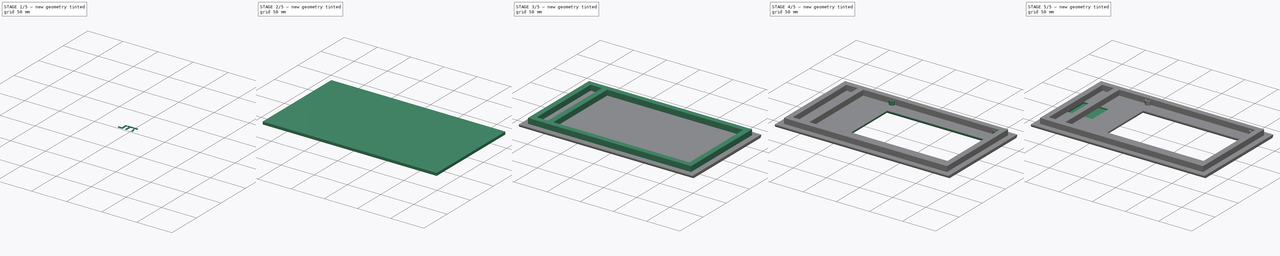
[diagram: build sequence overview — one tinted view per stage of 5, left to right]
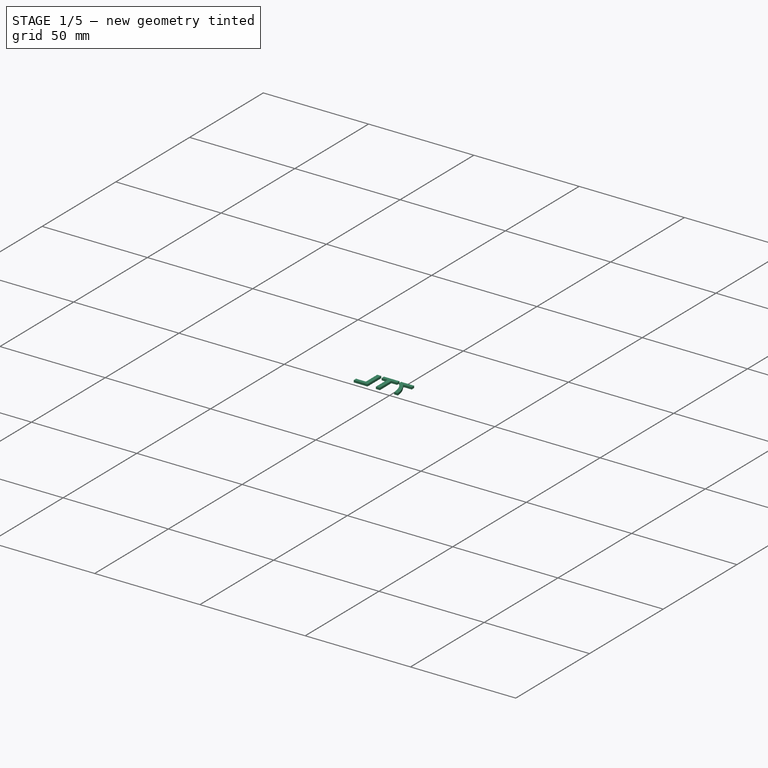
[diagram: stage 1 of 5 — iso view after this stage's code; geometry added in this stage tinted green]
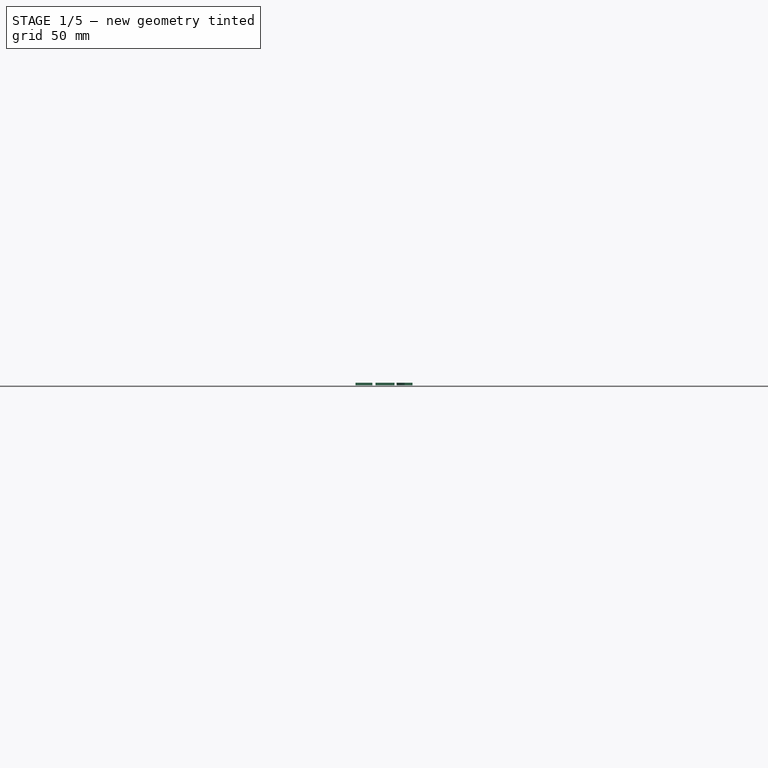
[diagram: stage 1 of 5 — front view after this stage's code; geometry added in this stage tinted green]
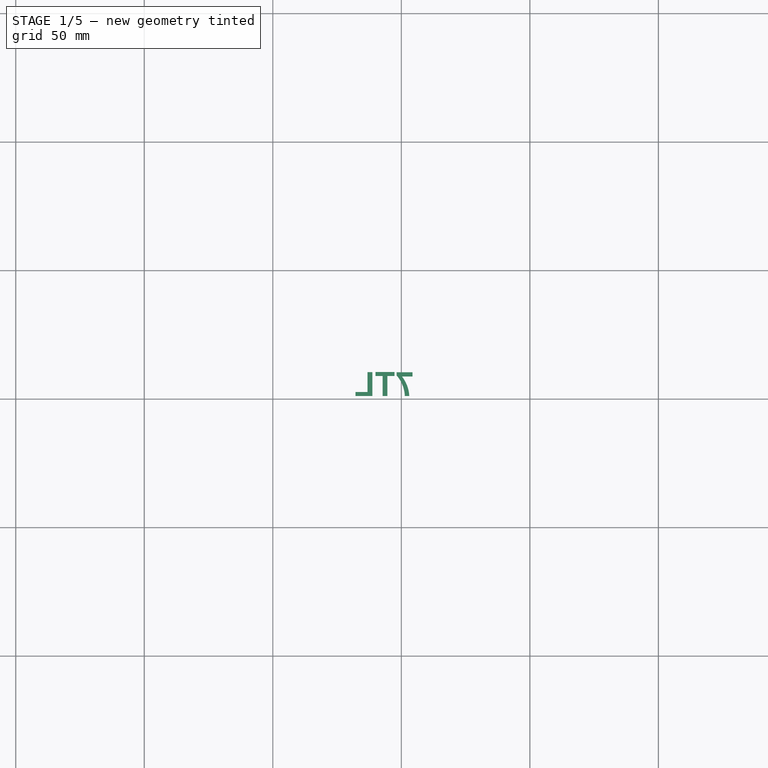
[diagram: stage 1 of 5 — top view after this stage's code; geometry added in this stage tinted green]
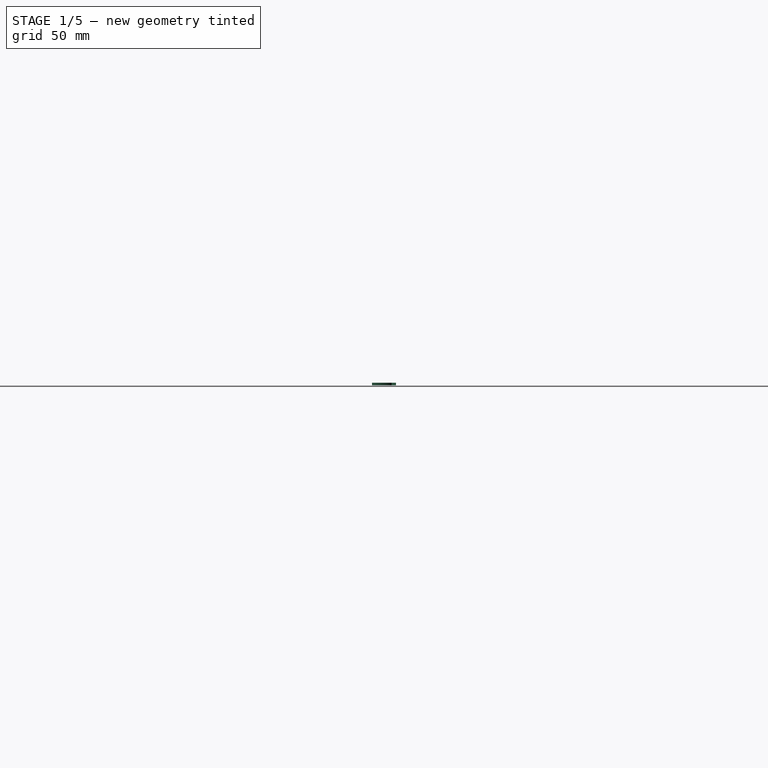
[diagram: stage 1 of 5 — right view after this stage's code; geometry added in this stage tinted green]
FCSTD DOCUMENT  (FreeCAD 0.21R33771 (Git))
Label: sBitX_Case
License: All rights reserved
LicenseURL: http://en.wikipedia.org/wiki/All_rights_reserved
objects: Sketcher::SketchObject×8, PartDesign::Pad×8, PartDesign::Pocket×6, Part::Part2DObjectPython×6, PartDesign::Body×6, App::Part×6, Spreadsheet::Sheet×1, PartDesign::Fillet×1, PartDesign::Chamfer×1
note: 52 computed .brp shape members not serialized (recipe doc carries the construction recipe); baked Part::Feature solids carry a one-line shape summary decoded from their .brp

FEATURE [PartDesign::Body] Body002  label="EBody"
  Group = -> [ShapeString006,Pad004]
  Origin = -> Origin008
  Tip = -> Pad004
FEATURE [App::Part] Part005  label="EPart"
  Group = -> [Body002]
  Origin = -> Origin007
FEATURE [Part::Part2DObjectPython] ShapeString007  label="7Fill"  # Draft 2D object (typed FeaturePython)
  FontFile = <path>
  MakeFace = true
  Placement = pos=(54.87,51.22,0) rot=(0,1,0;3.14159rad)
  Size = 10
  String = 7
  Tracking = 0
FEATURE [PartDesign::Pad] Pad005
  Direction = (0,0,-1)
  Length = 1
  Length2 = 10
  Placement = pos=(54.87,51.22,0) rot=(0,1,0;3.14159rad)
  Profile = -> ShapeString007
  ReferenceAxis = -> ShapeString007 [N_Axis]
  Reversed = true
  Type = 0
FEATURE [PartDesign::Body] Body003  label="7Body"
  Group = -> [ShapeString007,Pad005]
  Origin = -> Origin010
  Tip = -> Pad005
FEATURE [App::Part] Part006  label="7Part"
  Group = -> [Body003]
  Origin = -> Origin009
FEATURE [Part::Part2DObjectPython] ShapeString008  label="TFill"  # Draft 2D object (typed FeaturePython)
  FontFile = <path>
  MakeFace = true
  Placement = pos=(47.62,51.22,0) rot=(0,1,0;3.14159rad)
  Size = 10
  String = T
  Tracking = 0
FEATURE [PartDesign::Pad] Pad006
  Direction = (0,0,-1)
  Length = 1
  Length2 = 10
  Placement = pos=(47.62,51.22,0) rot=(0,1,0;3.14159rad)
  Profile = -> ShapeString008
  ReferenceAxis = -> ShapeString008 [N_Axis]
  Reversed = true
  Type = 0
FEATURE [PartDesign::Body] Body004  label="TBody"
  Group = -> [ShapeString008,Pad006]
  Origin = -> Origin012
  Tip = -> Pad006
FEATURE [App::Part] Part007  label="TPart"
  Group = -> [Body004]
  Origin = -> Origin011
FEATURE [Part::Part2DObjectPython] ShapeString009  label="LFill"  # Draft 2D object (typed FeaturePython)
  FontFile = <path>
  MakeFace = true
  Placement = pos=(39.72,51.22,0) rot=(0,1,0;3.14159rad)
  Size = 10
  String = L
  Tracking = 0
FEATURE [PartDesign::Pad] Pad007
  Direction = (0,0,-1)
  Length = 1
  Length2 = 10
  Placement = pos=(39.72,51.22,0) rot=(0,1,0;3.14159rad)
  Profile = -> ShapeString009
  ReferenceAxis = -> ShapeString009 [N_Axis]
  Reversed = true
  Type = 0
FEATURE [PartDesign::Body] Body005  label="LBody"
  Group = -> [ShapeString009,Pad007]
  Origin = -> Origin014
  Tip = -> Pad007
FEATURE [App::Part] Part008  label="LPart"
  Group = -> [Body005]
  Origin = -> Origin013
note: 6 file-system paths scrubbed to <path> (originals preserved in the JSON sidecar)
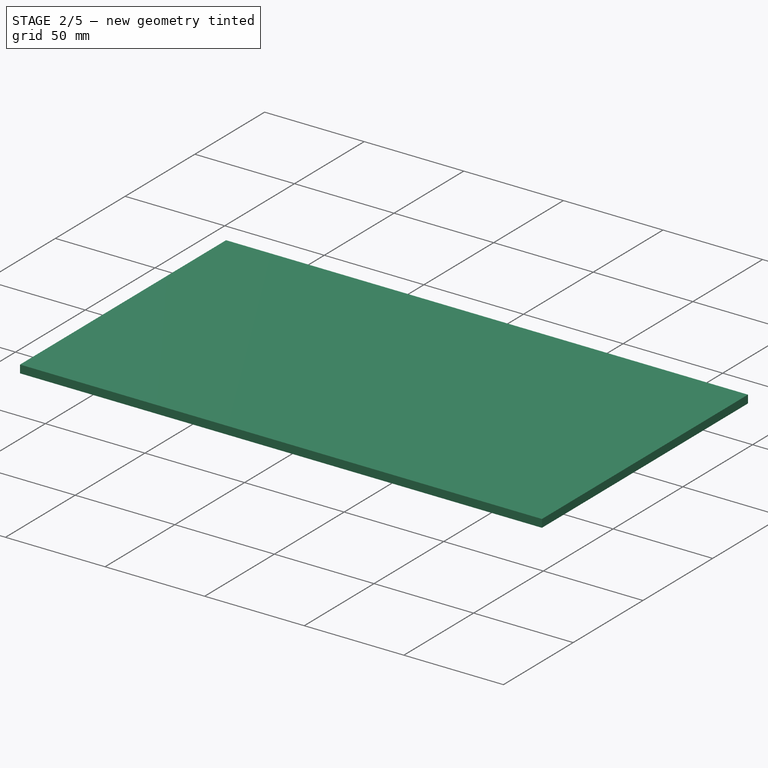
[diagram: stage 2 of 5 — iso view after this stage's code; geometry added in this stage tinted green]
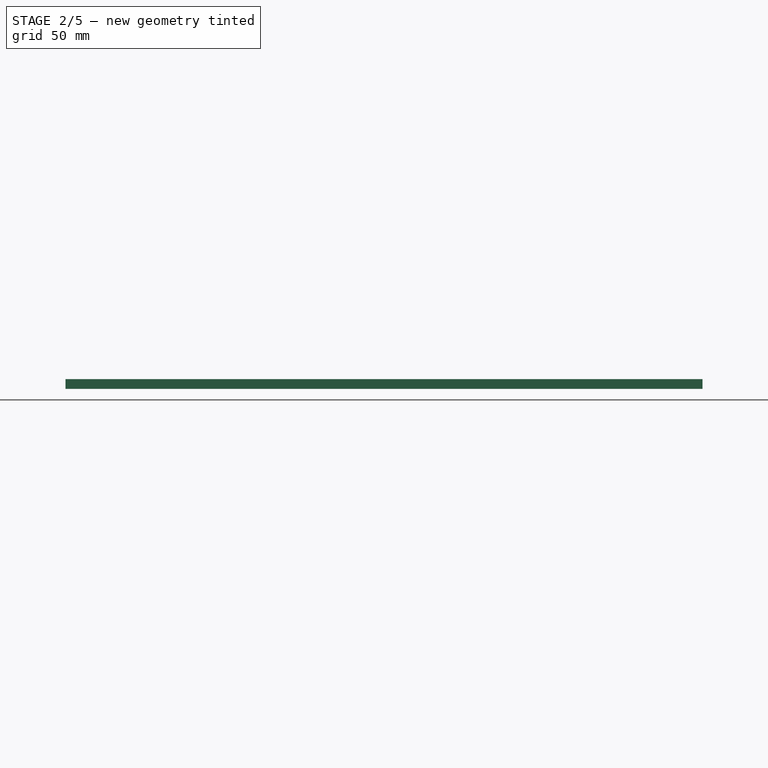
[diagram: stage 2 of 5 — front view after this stage's code; geometry added in this stage tinted green]
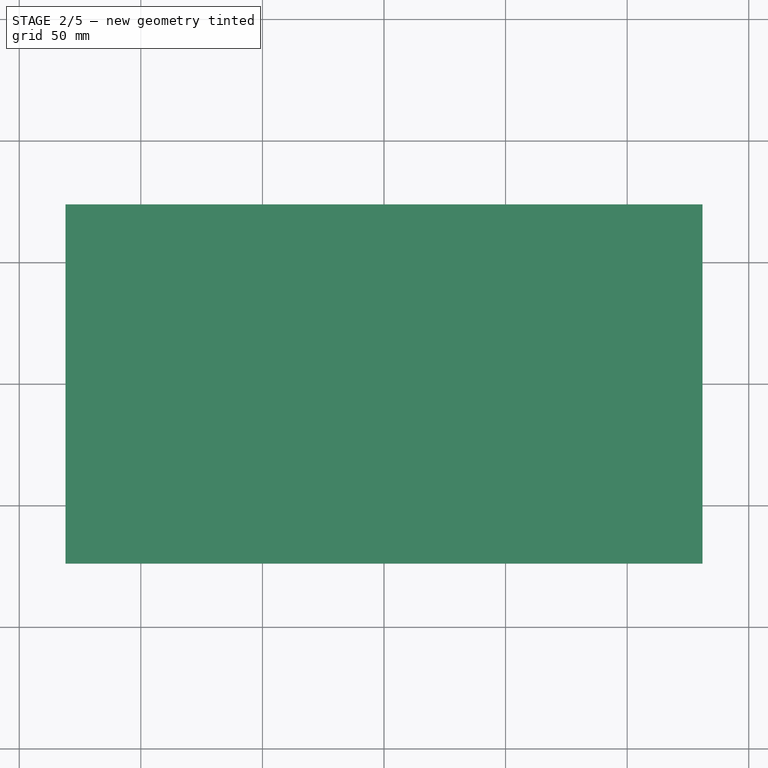
[diagram: stage 2 of 5 — top view after this stage's code; geometry added in this stage tinted green]
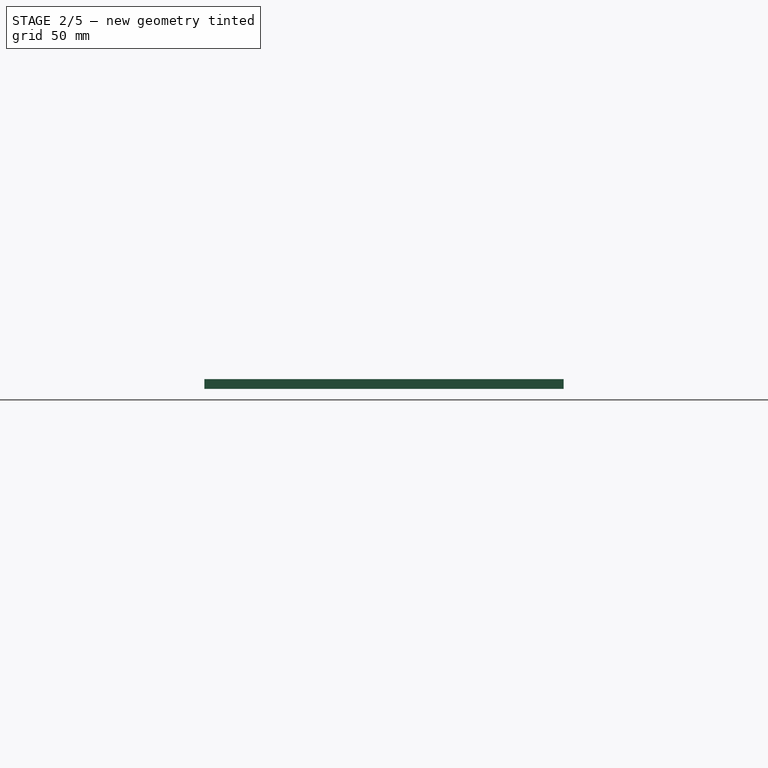
[diagram: stage 2 of 5 — right view after this stage's code; geometry added in this stage tinted green]
FEATURE [Spreadsheet::Sheet] Spreadsheet  label="p"
  cells = A1='disp_width; B1(disp_width)=165; C1=165; A2='disp_length; B2(disp_length)=125; A3='disp_height; B3(disp_height)=6; A5='disp_hole_width; B5(disp_hole_width)=156.9; A6='disp_hole_center_height; B6(disp_hole_center_height)=114.96; A7='disp_hole_radius; B7(disp_hole_radius)=1.6; A9='disp_pcb_thickness; B9(disp_pcb_thickness)=1.6; A10='disp_thickest; B10(disp_thickest)=15; A12='disp_screen_width; B12(disp_screen_width)=145; A13='disp_screen_length; B13(disp_screen_length)=77.5; A15='lid_width; B15(lid_width)=254; C15='+ lid_wall_thickness * 2; A16='lid_length; B16(lid_length)=139.7; C16='+ lid_wall_thickness * 2; A17='lid_hole_diameter; B17(lid_hole_diameter)=5.5; C17='M4/H8; A18='lid_wall_thickness; B18(lid_wall_thickness)=4; A19='lid_support_thickness; B19(lid_support_thickness)=8; A21='encoder_board_width; B21(encoder_board_width)=26; A22='encoder_board_length; B22(encoder_board_length)=106.5; A23='encoder_board_bottom_encoder_y; B23(encoder_board_bottom_encoder_y)=13; A24='encoder_board_top_encoder_y; B24(encoder_board_top_encoder_y)=88.5; A25='encoder_hole_diameter; B25(encoder_hole_diameter)=8; A26='encoder_board_connector_length; B26(encoder_board_connector_length)=21; A27='encoder_board_connector_bottom_edge_y; B27(encoder_board_connector_bottom_edge_y)=38; A28='encoder_board_connector_thickness; B28(encoder_board_connector_thickness)=11.1; A29='encoder_thread_start; B29(encoder_thread_start)=7; A30='encoder_nut_hole_diameter; B30(encoder_nut_hole_diameter)=13.5; A32='lid_wall_clearance; B32(lid_wall_clearance)=0.2; A33='disp_width_clearance; B33(disp_width_clearance)=40; A35='disp_lug_hole_diameter; B35(disp_lug_hole_diameter)=4.5; A36='disp_lug_diameter; B36(disp_lug_diameter)=8; A38='encoder_stem_distance; B38(encoder_stem_distance)=76
FEATURE [Sketcher::SketchObject] Sketch  label="LidBodySketch"
  FullyConstrained = true
  MapMode = 5
  Support = -> [XY_Plane001]
  expr: Constraints[8] = <<p>>.lid_width + <<p>>.lid_wall_thickness * 2
  expr: Constraints[9] = <<p>>.lid_length + <<p>>.lid_wall_thickness * 2
  sketch-geometry (4):
    g0: LineSegment StartX=-131 StartY=73.85 StartZ=0 EndX=131 EndY=73.85 EndZ=0
    g1: LineSegment StartX=131 StartY=73.85 StartZ=0 EndX=131 EndY=-73.85 EndZ=0
    g2: LineSegment StartX=131 StartY=-73.85 StartZ=0 EndX=-131 EndY=-73.85 EndZ=0
    g3: LineSegment StartX=-131 StartY=-73.85 StartZ=0 EndX=-131 EndY=73.85 EndZ=0
  constraints (11):
    c: Coincident(g0,g1)
    c: Coincident(g1,g2)
    c: Coincident(g2,g3)
    c: Coincident(g3,g0)
    c: Horizontal(g0)
    c: Horizontal(g2)
    c: Vertical(g1)
    c: Vertical(g3)
    c: DistanceX(g0,g0) = 262
    c: DistanceY(g1,g1) = 147.7
    c: Symmetric(g0,g2,g-1)
FEATURE [PartDesign::Pad] Pad  label="LidBodyPad"
  Direction = (0,0,1)
  Length = 4
  Length2 = 10
  Profile = -> Sketch
  ReferenceAxis = -> Sketch [N_Axis]
  Type = 0
  expr: Length = <<p>>.lid_wall_thickness
FEATURE [PartDesign::Body] Body  label="LidBody"
  Group = -> [Sketch,Pad,Fillet,Sketch001,Pad001,Sketch002,Pocket,Sketch003,Pocket001,Sketch004,Pocket002,Chamfer,Sketch005,Pad002,Sketch006,Pocket003,Sketch007,Pocket004,ShapeString,Pocket005]
  Origin = -> Origin001
  Tip = -> Pocket005
FEATURE [App::Part] Part  label="Lid"
  Group = -> [Body]
  Origin = -> Origin
FEATURE [Part::Part2DObjectPython] ShapeString002  label="KFill"  # Draft 2D object (typed FeaturePython)
  FontFile = <path>
  MakeFace = true
  Placement = pos=(64.31,51.22,0) rot=(0,1,0;3.14159rad)
  Size = 10
  String = K
  Tracking = 0
FEATURE [PartDesign::Pad] Pad003
  Direction = (0,0,-1)
  Length = 1
  Length2 = 10
  Placement = pos=(64.31,51.22,0) rot=(0,1,0;3.14159rad)
  Profile = -> ShapeString002
  ReferenceAxis = -> ShapeString002 [N_Axis]
  Reversed = true
  Type = 0
FEATURE [PartDesign::Body] Body001  label="KBody"
  Group = -> [ShapeString002,Pad003]
  Origin = -> Origin003
  Tip = -> Pad003
FEATURE [App::Part] Part001  label="KPart"
  Group = -> [Body001]
  Origin = -> Origin002
FEATURE [Part::Part2DObjectPython] ShapeString006  label="EFill"  # Draft 2D object (typed FeaturePython)
  FontFile = <path>
  MakeFace = true
  Placement = pos=(31.74,51.22,0) rot=(0,1,0;3.14159rad)
  Size = 10
  String = E
  Tracking = 0
FEATURE [PartDesign::Pad] Pad004
  Direction = (0,0,-1)
  Length = 1
  Length2 = 10
  Placement = pos=(31.74,51.22,0) rot=(0,1,0;3.14159rad)
  Profile = -> ShapeString006
  ReferenceAxis = -> ShapeString006 [N_Axis]
  Reversed = true
  Type = 0
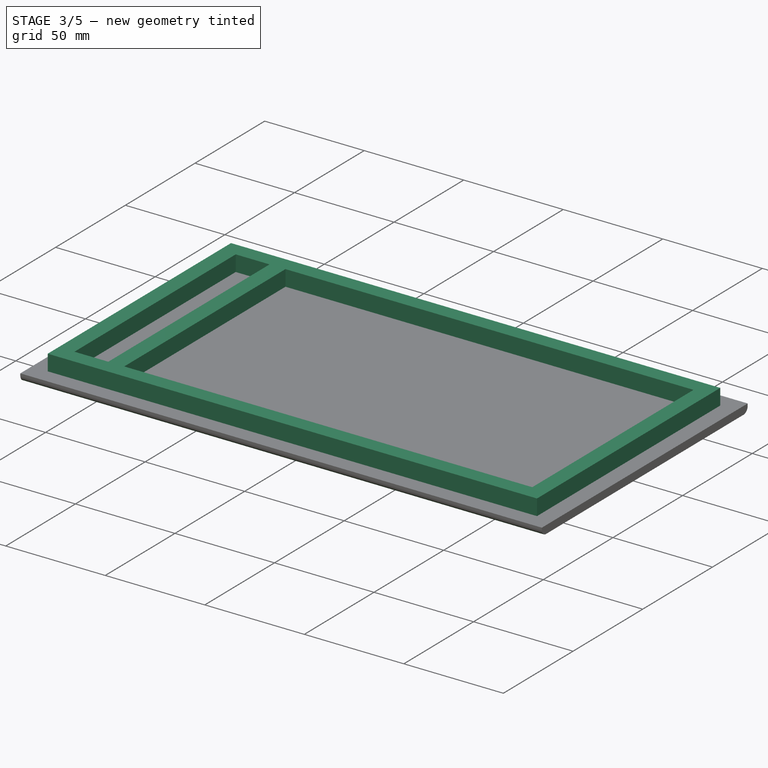
[diagram: stage 3 of 5 — iso view after this stage's code; geometry added in this stage tinted green]
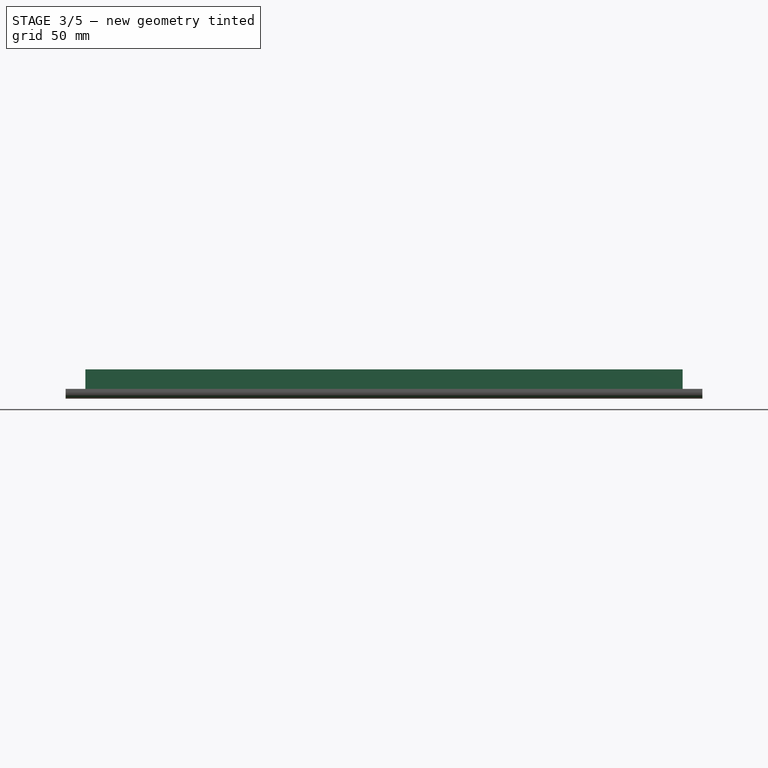
[diagram: stage 3 of 5 — front view after this stage's code; geometry added in this stage tinted green]
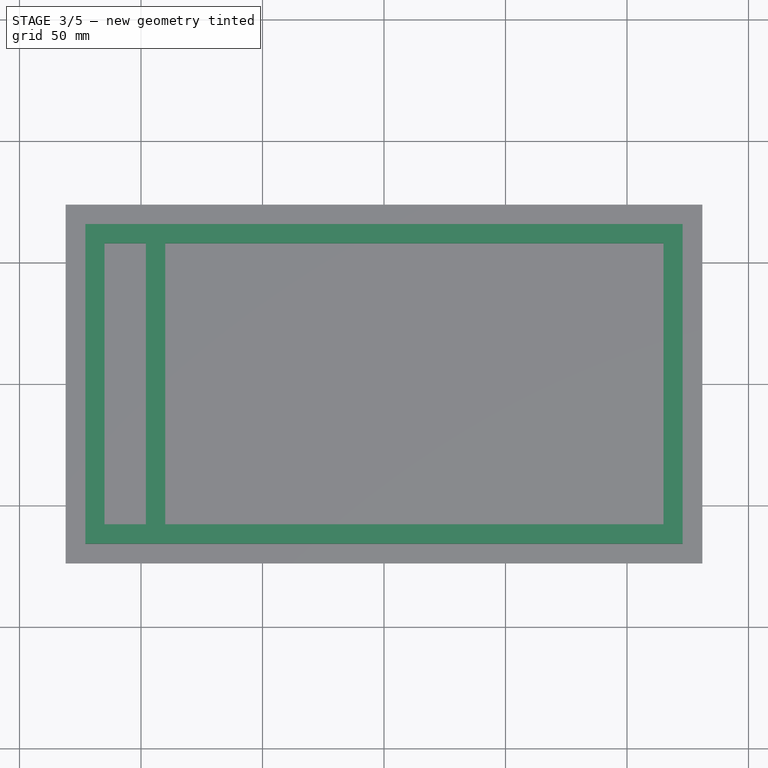
[diagram: stage 3 of 5 — top view after this stage's code; geometry added in this stage tinted green]
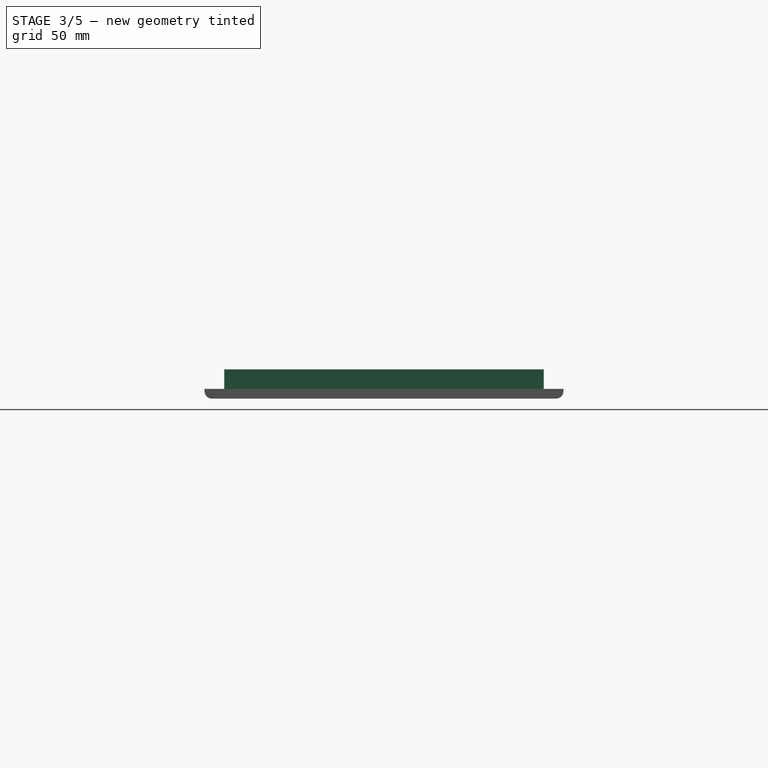
[diagram: stage 3 of 5 — right view after this stage's code; geometry added in this stage tinted green]
FEATURE [PartDesign::Fillet] Fillet  label="LidBodyFillet"
  Base = -> Pad [Edge3,Edge9]
  BaseFeature = -> Pad
  Radius = 3
  SupportTransform = false
  UseAllEdges = false
FEATURE [Sketcher::SketchObject] Sketch001  label="LidInnerPad"
  FullyConstrained = true
  MapMode = 5
  Placement = pos=(0,0,4) rot=(0,0,1;0rad)
  Support = -> [Fillet]
  expr: Constraints[8] = <<p>>.lid_width - <<p>>.lid_wall_thickness * 2 - <<p>>.lid_wall_clearance
  expr: Constraints[9] = <<p>>.lid_length - <<p>>.lid_wall_thickness * 2 - <<p>>.lid_wall_clearance
  sketch-geometry (4):
    g0: LineSegment StartX=-122.9 StartY=65.75 StartZ=0 EndX=122.9 EndY=65.75 EndZ=0
    g1: LineSegment StartX=122.9 StartY=65.75 StartZ=0 EndX=122.9 EndY=-65.75 EndZ=0
    g2: LineSegment StartX=122.9 StartY=-65.75 StartZ=0 EndX=-122.9 EndY=-65.75 EndZ=0
    g3: LineSegment StartX=-122.9 StartY=-65.75 StartZ=0 EndX=-122.9 EndY=65.75 EndZ=0
  constraints (11):
    c: Coincident(g0,g1)
    c: Coincident(g1,g2)
    c: Coincident(g2,g3)
    c: Coincident(g3,g0)
    c: Horizontal(g0)
    c: Horizontal(g2)
    c: Vertical(g1)
    c: Vertical(g3)
    c: DistanceX(g0,g0) = 245.8
    c: DistanceY(g3,g3) = 131.5
    c: Symmetric(g0,g2,g-1)
FEATURE [PartDesign::Pad] Pad001  label="LidInnerPad001"
  BaseFeature = -> Fillet
  Direction = (0,0,1)
  Length = 8
  Length2 = 10
  Profile = -> Sketch001
  ReferenceAxis = -> Sketch001 [N_Axis]
  Type = 0
  expr: Length = <<p>>.lid_support_thickness
FEATURE [Sketcher::SketchObject] Sketch002  label="DispPocketSketch"
  FullyConstrained = true
  MapMode = 5
  Placement = pos=(0,0,12) rot=(0,0,1;0rad)
  Support = -> [Pad001]
  expr: Constraints[10] = <<p>>.disp_width + <<p>>.disp_width_clearance
  expr: Constraints[11] = <<p>>.lid_width / 2 - <<p>>.lid_wall_thickness - <<p>>.lid_support_thickness
  expr: Constraints[8] = <<p>>.lid_length - <<p>>.lid_wall_thickness * 2 - <<p>>.lid_support_thickness * 2
  expr: Constraints[9] = <<p>>.lid_length / 2 - <<p>>.lid_wall_thickness - <<p>>.lid_support_thickness
  sketch-geometry (4):
    g0: LineSegment StartX=115 StartY=57.85 StartZ=0 EndX=-90 EndY=57.85 EndZ=0
    g1: LineSegment StartX=-90 StartY=57.85 StartZ=0 EndX=-90 EndY=-57.85 EndZ=0
    g2: LineSegment StartX=-90 StartY=-57.85 StartZ=0 EndX=115 EndY=-57.85 EndZ=0
    g3: LineSegment StartX=115 StartY=-57.85 StartZ=0 EndX=115 EndY=57.85 EndZ=0
  constraints (12):
    c: Coincident(g0,g1)
    c: Coincident(g1,g2)
    c: Coincident(g2,g3)
    c: Coincident(g3,g0)
    c: Horizontal(g0)
    c: Horizontal(g2)
    c: Vertical(g1)
    c: Vertical(g3)
    c: DistanceY(g3,g3) = 115.7
    c: DistanceY(g-1,g0) = 57.85
    c: DistanceX(g0,g0) = 205
    c: DistanceX(g-1,g0) = 115
FEATURE [PartDesign::Pocket] Pocket  label="DispPocket"
  BaseFeature = -> Pad001
  Direction = (0,0,-1)
  Length = 8
  Length2 = 5
  Profile = -> Sketch002
  ReferenceAxis = -> Sketch002 [N_Axis]
  Type = 0
  expr: Length = <<p>>.lid_support_thickness
FEATURE [Sketcher::SketchObject] Sketch003  label="EncoderPocketSketch"
  FullyConstrained = true
  MapMode = 5
  Placement = pos=(0,0,12) rot=(0,0,1;0rad)
  Support = -> [Pocket]
  expr: Constraints[10] = <<p>>.lid_width / 2 - <<p>>.lid_wall_thickness - <<p>>.lid_support_thickness
  expr: Constraints[11] = -<<p>>.lid_width / 2 + <<p>>.lid_wall_thickness + <<p>>.lid_support_thickness + <<p>>.disp_width + <<p>>.disp_width_clearance + <<p>>.lid_support_thickness
  expr: Constraints[8] = <<p>>.lid_length - <<p>>.lid_wall_thickness * 2 - <<p>>.lid_support_thickness * 2
  expr: Constraints[9] = <<p>>.lid_length / 2 - <<p>>.lid_wall_thickness - <<p>>.lid_support_thickness
  sketch-geometry (4):
    g0: LineSegment StartX=-115 StartY=57.85 StartZ=0 EndX=-98 EndY=57.85 EndZ=0
    g1: LineSegment StartX=-98 StartY=57.85 StartZ=0 EndX=-98 EndY=-57.85 EndZ=0
    g2: LineSegment StartX=-98 StartY=-57.85 StartZ=0 EndX=-115 EndY=-57.85 EndZ=0
    g3: LineSegment StartX=-115 StartY=-57.85 StartZ=0 EndX=-115 EndY=57.85 EndZ=0
  constraints (12):
    c: Coincident(g0,g1)
    c: Coincident(g1,g2)
    c: Coincident(g2,g3)
    c: Coincident(g3,g0)
    c: Horizontal(g0)
    c: Horizontal(g2)
    c: Vertical(g1)
    c: Vertical(g3)
    c: DistanceY(g3,g3) = 115.7
    c: DistanceY(g-1,g0) = 57.85
    c: DistanceX(g0,g-1) = 115
    c: DistanceX(g0,g-1) = 98
FEATURE [PartDesign::Pocket] Pocket001  label="EncoderPocket"
  BaseFeature = -> Pocket
  Direction = (0,0,-1)
  Length = 8
  Length2 = 5
  Profile = -> Sketch003
  ReferenceAxis = -> Sketch003 [N_Axis]
  Type = 0
  expr: Length = <<p>>.lid_support_thickness
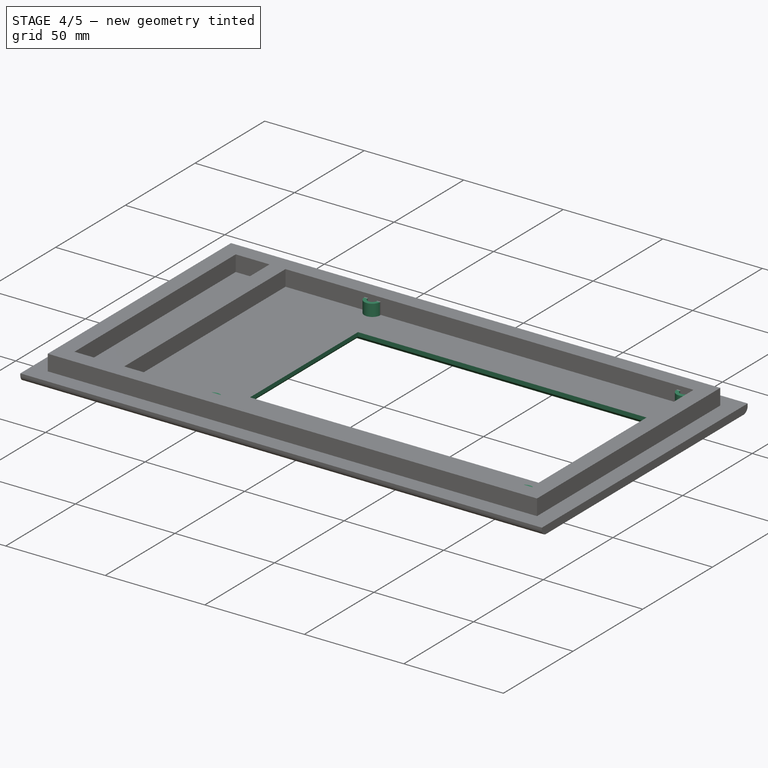
[diagram: stage 4 of 5 — iso view after this stage's code; geometry added in this stage tinted green]
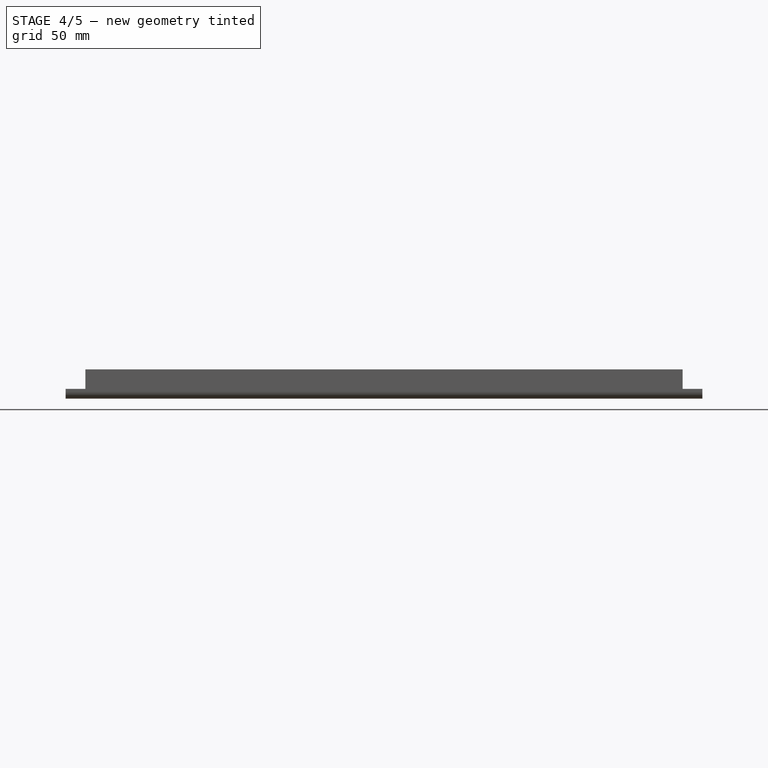
[diagram: stage 4 of 5 — front view after this stage's code; geometry added in this stage tinted green]
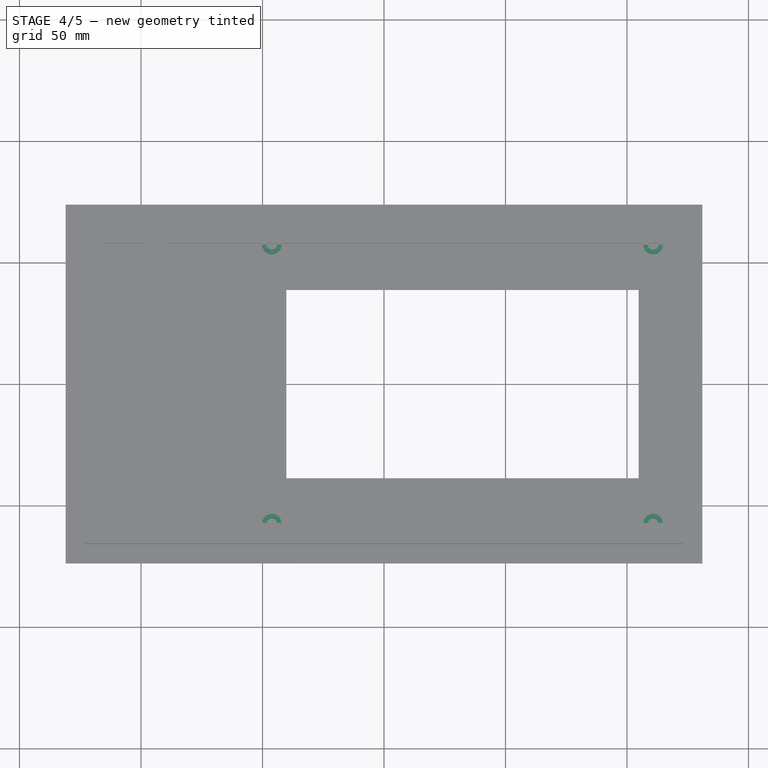
[diagram: stage 4 of 5 — top view after this stage's code; geometry added in this stage tinted green]
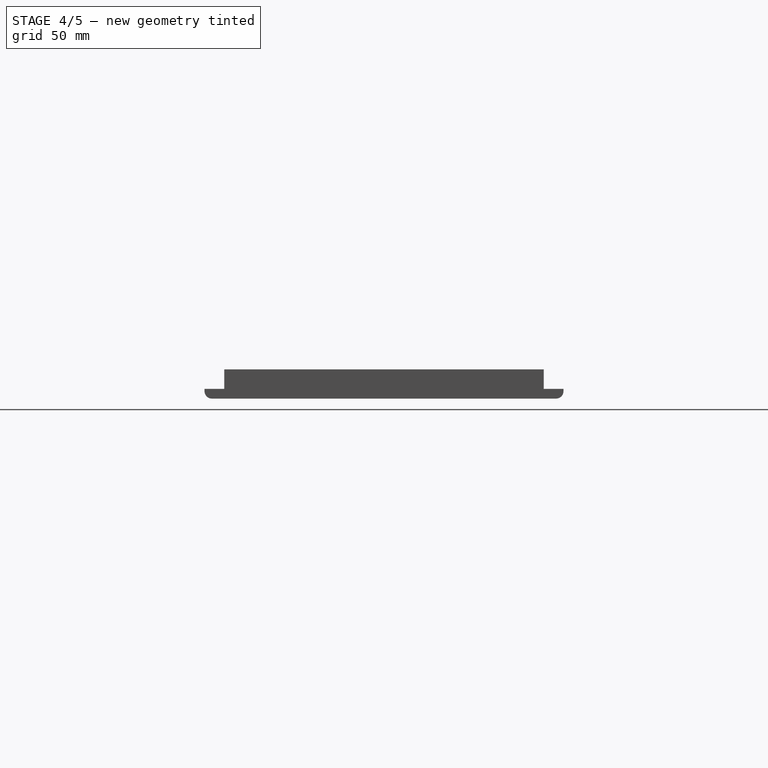
[diagram: stage 4 of 5 — right view after this stage's code; geometry added in this stage tinted green]
FEATURE [Sketcher::SketchObject] Sketch004  label="ScreenPocketSketch"
  FullyConstrained = true
  MapMode = 5
  Placement = pos=(0,0,4) rot=(0,0,1;0rad)
  Support = -> [Pocket001]
  expr: Constraints[10] = <<p>>.disp_screen_length / 2
  expr: Constraints[11] = <<p>>.lid_width / 2 - <<p>>.lid_wall_thickness - <<p>>.lid_support_thickness - <<p>>.lid_wall_clearance - (<<p>>.disp_width - <<p>>.disp_screen_width) / 2
  expr: Constraints[8] = <<p>>.disp_screen_width
  expr: Constraints[9] = <<p>>.disp_screen_length
  sketch-geometry (4):
    g0: LineSegment StartX=-40.2 StartY=38.75 StartZ=0 EndX=104.8 EndY=38.75 EndZ=0
    g1: LineSegment StartX=104.8 StartY=38.75 StartZ=0 EndX=104.8 EndY=-38.75 EndZ=0
    g2: LineSegment StartX=104.8 StartY=-38.75 StartZ=0 EndX=-40.2 EndY=-38.75 EndZ=0
    g3: LineSegment StartX=-40.2 StartY=-38.75 StartZ=0 EndX=-40.2 EndY=38.75 EndZ=0
  constraints (12):
    c: Coincident(g0,g1)
    c: Coincident(g1,g2)
    c: Coincident(g2,g3)
    c: Coincident(g3,g0)
    c: Horizontal(g0)
    c: Horizontal(g2)
    c: Vertical(g1)
    c: Vertical(g3)
    c: DistanceX(g0,g0) = 145
    c: DistanceY(g1,g1) = 77.5
    c: DistanceY(g-1,g0) = 38.75
    c: DistanceX(g-1,g0) = 104.8
FEATURE [PartDesign::Pocket] Pocket002  label="ScreenPocket"
  BaseFeature = -> Pocket001
  Direction = (0,0,-1)
  Length = 4
  Length2 = 5
  Profile = -> Sketch004
  ReferenceAxis = -> Sketch004 [N_Axis]
  Type = 0
  expr: Length = <<p>>.lid_wall_thickness
FEATURE [PartDesign::Chamfer] Chamfer  label="ScreenPocketChamfer"
  Angle = 45
  Base = -> Pocket002 [Edge26,Edge25,Edge24,Edge23]
  BaseFeature = -> Pocket002
  ChamferType = 0
  FlipDirection = false
  Size = 2
  Size2 = 1
  SupportTransform = false
  UseAllEdges = false
FEATURE [Sketcher::SketchObject] Sketch005  label="ScreenLugSketch"
  FullyConstrained = true
  MapMode = 5
  Placement = pos=(0,0,4) rot=(0,0,1;0rad)
  Support = -> [Chamfer]
  expr: Constraints[0] = <<p>>.disp_lug_hole_diameter
  expr: Constraints[10] = <<p>>.disp_lug_hole_diameter
  expr: Constraints[11] = <<p>>.disp_lug_diameter
  expr: Constraints[12] = <<p>>.disp_hole_center_height / 2
  expr: Constraints[13] = <<p>>.disp_hole_center_height / 2
  expr: Constraints[14] = <<p>>.disp_hole_center_height / 2
  expr: Constraints[15] = <<p>>.disp_hole_center_height / 2
  expr: Constraints[16] = <<p>>.lid_width / 2 - <<p>>.lid_wall_thickness - <<p>>.lid_support_thickness - <<p>>.lid_wall_clearance - (<<p>>.disp_width - <<p>>.disp_hole_width) / 2
  expr: Constraints[17] = <<p>>.lid_width / 2 - <<p>>.lid_wall_thickness - <<p>>.lid_support_thickness - <<p>>.lid_wall_clearance - (<<p>>.disp_width - <<p>>.disp_hole_width) / 2
  expr: Constraints[18] = <<p>>.disp_hole_width
  expr: Constraints[19] = <<p>>.disp_hole_width
  expr: Constraints[1] = <<p>>.disp_lug_diameter
  expr: Constraints[6] = <<p>>.disp_lug_hole_diameter
  expr: Constraints[7] = <<p>>.disp_lug_diameter
  expr: Constraints[8] = <<p>>.disp_lug_hole_diameter
  expr: Constraints[9] = <<p>>.disp_lug_diameter
  sketch-geometry (8):
    g0: Circle CenterX=110.75 CenterY=57.48 CenterZ=0 NormalX=0 NormalY=0 NormalZ=1 AngleXU=0 Radius=4
    g1: Circle CenterX=110.75 CenterY=57.48 CenterZ=0 NormalX=0 NormalY=0 NormalZ=1 AngleXU=0 Radius=2.25
    g2: Circle CenterX=-46.15 CenterY=57.48 CenterZ=0 NormalX=0 NormalY=0 NormalZ=1 AngleXU=0 Radius=4
    g3: Circle CenterX=-46.15 CenterY=57.48 CenterZ=0 NormalX=0 NormalY=0 NormalZ=1 AngleXU=0 Radius=2.25
    g4: Circle CenterX=-46.15 CenterY=-57.48 CenterZ=0 NormalX=0 NormalY=0 NormalZ=1 AngleXU=0 Radius=4
    g5: Circle CenterX=-46.15 CenterY=-57.48 CenterZ=0 NormalX=0 NormalY=0 NormalZ=1 AngleXU=0 Radius=2.25
    g6: Circle CenterX=110.75 CenterY=-57.48 CenterZ=0 NormalX=0 NormalY=0 NormalZ=1 AngleXU=0 Radius=4
    g7: Circle CenterX=110.75 CenterY=-57.48 CenterZ=0 NormalX=0 NormalY=0 NormalZ=1 AngleXU=0 Radius=2.25
  constraints (20):
    c: Diameter(g1) = 4.5
    c: Diameter(g0) = 8
    c: Coincident(g1,g0)
    c: Coincident(g3,g2)
    c: Coincident(g5,g4)
    c: Coincident(g7,g6)
    c: Diameter(g7) = 4.5
    c: Diameter(g6) = 8
    c: Diameter(g5) = 4.5
    c: Diameter(g4) = 8
    c: Diameter(g3) = 4.5
    c: Diameter(g2) = 8
    c: DistanceY(g-1,g2) = 57.48
    c: DistanceY(g4,g-1) = 57.48
    c: DistanceY(g-1,g0) = 57.48
    c: DistanceY(g6,g-1) = 57.48
    c: DistanceX(g-1,g0) = 110.75
    c: DistanceX(g-1,g6) = 110.75
    c: DistanceX(g2,g0) = 156.9
    c: DistanceX(g4,g6) = 156.9
FEATURE [PartDesign::Pad] Pad002  label="ScreenLugs"
  BaseFeature = -> Chamfer
  Direction = (0,0,1)
  Length = 6
  Length2 = 10
  Profile = -> Sketch005
  ReferenceAxis = -> Sketch005 [N_Axis]
  Type = 0
  expr: Length = <<p>>.disp_height
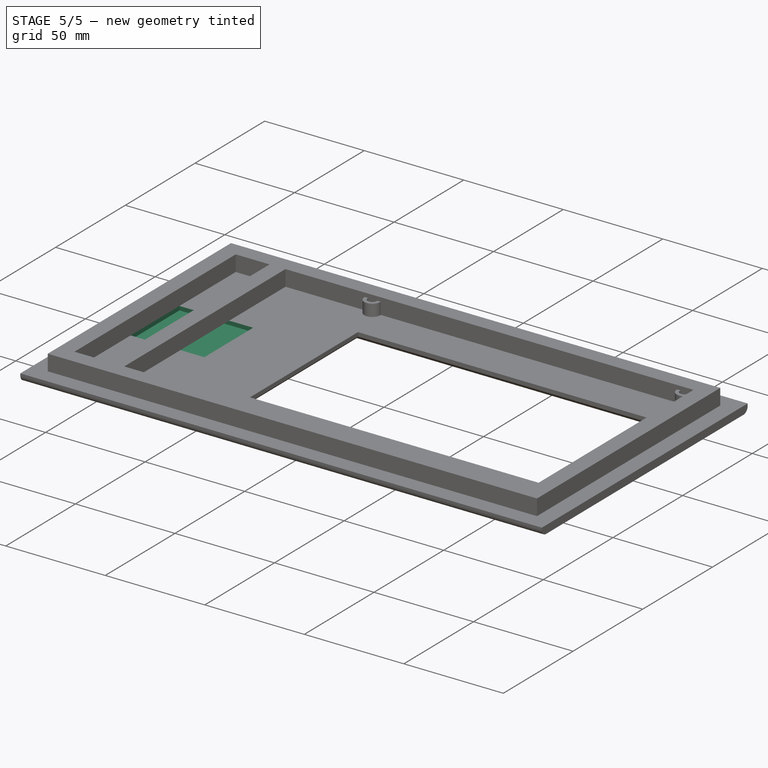
[diagram: stage 5 of 5 — iso view after this stage's code; geometry added in this stage tinted green]
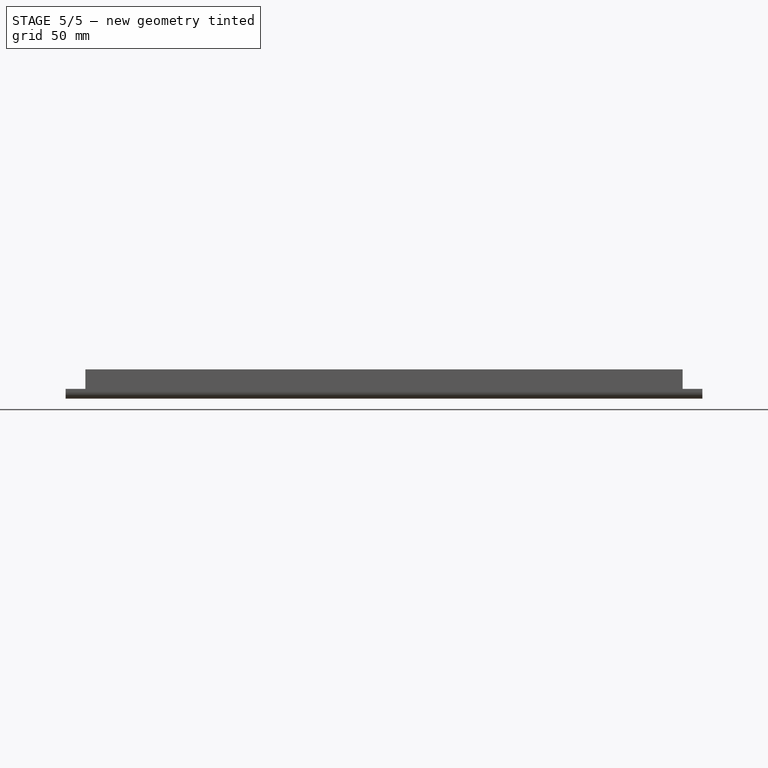
[diagram: stage 5 of 5 — front view after this stage's code; geometry added in this stage tinted green]
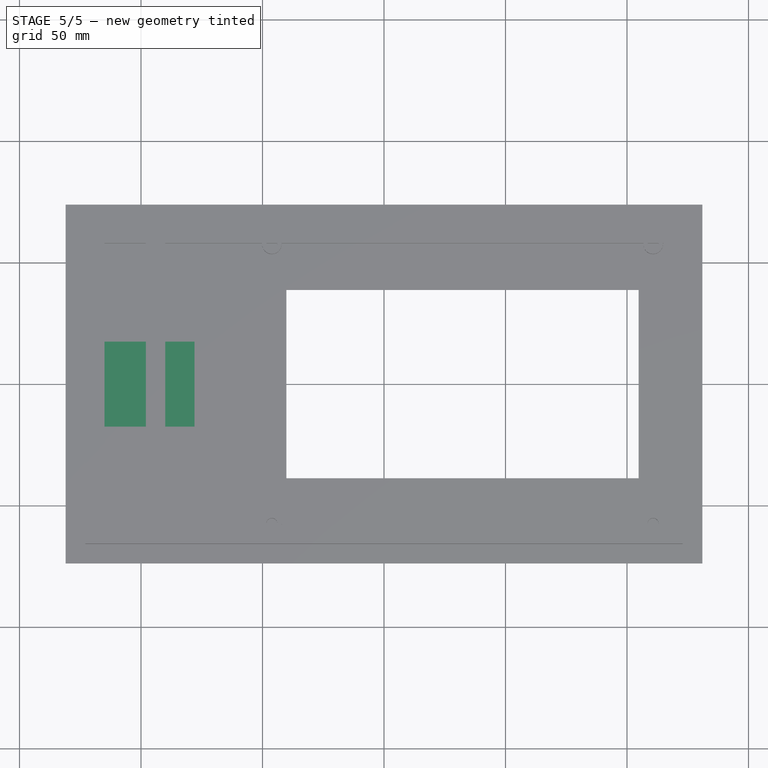
[diagram: stage 5 of 5 — top view after this stage's code; geometry added in this stage tinted green]
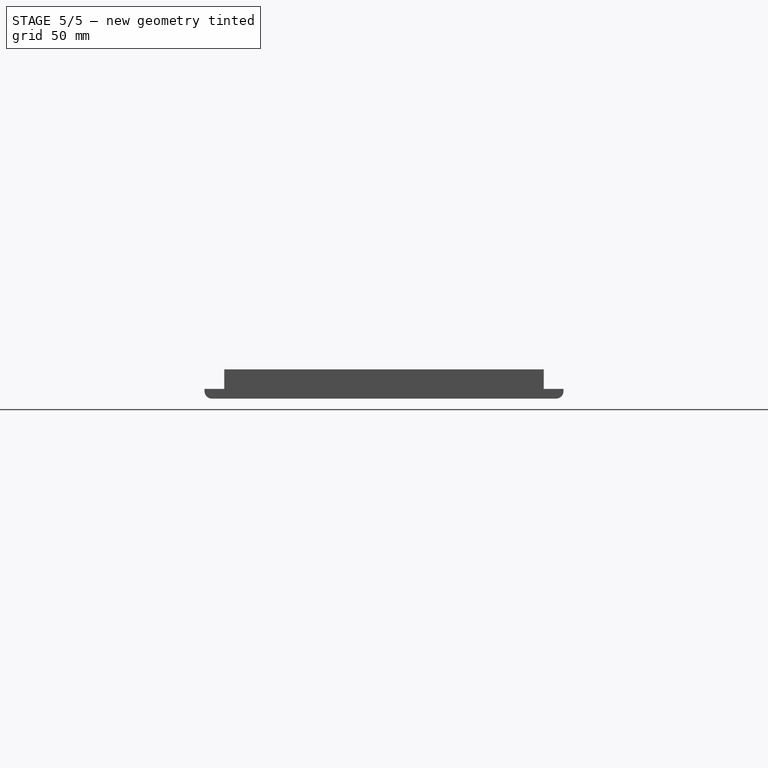
[diagram: stage 5 of 5 — right view after this stage's code; geometry added in this stage tinted green]
FEATURE [Sketcher::SketchObject] Sketch006  label="EncoderHoleSketch"
  FullyConstrained = true
  MapMode = 5
  Placement = pos=(0,0,10) rot=(0,0,1;0rad)
  Support = -> [Pad002]
  expr: Constraints[0] = <<p>>.encoder_hole_diameter
  expr: Constraints[1] = <<p>>.encoder_hole_diameter
  expr: Constraints[2] = <<p>>.encoder_stem_distance
  expr: Constraints[3] = <<p>>.lid_length / 4
  expr: Constraints[4] = <<p>>.lid_width / 2 - <<p>>.lid_wall_thickness - <<p>>.lid_support_thickness - 37 / 2
  expr: Constraints[5] = <<p>>.lid_width / 2 - <<p>>.lid_wall_thickness - <<p>>.lid_support_thickness - 37 / 2
  sketch-geometry (2):
    g0: Circle CenterX=-96.5 CenterY=-41.075 CenterZ=0 NormalX=0 NormalY=0 NormalZ=1 AngleXU=0 Radius=4
    g1: Circle CenterX=-96.5 CenterY=34.925 CenterZ=0 NormalX=0 NormalY=0 NormalZ=1 AngleXU=0 Radius=4
  constraints (6):
    c: Diameter(g1) = 8
    c: Diameter(g0) = 8
    c: DistanceY(g0,g1) = 76
    c: DistanceY(g-1,g1) = 34.925
    c: DistanceX(g1,g-1) = 96.5
    c: DistanceX(g0,g-1) = 96.5
FEATURE [PartDesign::Pocket] Pocket003  label="EcoderPockets"
  BaseFeature = -> Pad002
  Direction = (0,0,-1)
  Length = 4
  Length2 = 5
  Profile = -> Sketch006
  ReferenceAxis = -> Sketch006 [N_Axis]
  Type = 0
  expr: Length = <<p>>.lid_wall_thickness
FEATURE [Sketcher::SketchObject] Sketch007  label="EncoderCableSketch"
  FullyConstrained = true
  MapMode = 5
  Placement = pos=(0,0,4) rot=(0,0,1;0rad)
  Support = -> [Pocket003]
  expr: Constraints[11] = 35 / 2
  expr: Constraints[9] = <<p>>.lid_width / 2 - <<p>>.lid_wall_thickness - <<p>>.lid_support_thickness
  sketch-geometry (4):
    g0: LineSegment StartX=-115 StartY=17.5 StartZ=0 EndX=-78 EndY=17.5 EndZ=0
    g1: LineSegment StartX=-78 StartY=17.5 StartZ=0 EndX=-78 EndY=-17.5 EndZ=0
    g2: LineSegment StartX=-78 StartY=-17.5 StartZ=0 EndX=-115 EndY=-17.5 EndZ=0
    g3: LineSegment StartX=-115 StartY=-17.5 StartZ=0 EndX=-115 EndY=17.5 EndZ=0
  constraints (12):
    c: Coincident(g0,g1)
    c: Coincident(g1,g2)
    c: Coincident(g2,g3)
    c: Coincident(g3,g0)
    c: Horizontal(g0)
    c: Horizontal(g2)
    c: Vertical(g1)
    c: Vertical(g3)
    c: DistanceX(g0,g0) = 37
    c: DistanceX(g0,g-1) = 115
    c: DistanceY(g3,g3) = 35
    c: DistanceY(g-1,g0) = 17.5
FEATURE [PartDesign::Pocket] Pocket004  label="EncoderCablePocket"
  BaseFeature = -> Pocket003
  Direction = (0,0,-1)
  Length = 2
  Length2 = 5
  Profile = -> Sketch007
  ReferenceAxis = -> Sketch007 [N_Axis]
  Type = 0
  expr: Length = <<p>>.lid_wall_thickness / 2
FEATURE [Part::Part2DObjectPython] ShapeString  label="K7TLE"  # Draft 2D object (typed FeaturePython)
  FontFile = <path>
  MakeFace = true
  Placement = pos=(64.31,51.22,0) rot=(0,1,0;3.14159rad)
  Size = 10
  String = K7TLE
  Tracking = 0
FEATURE [PartDesign::Pocket] Pocket005  label="K7TLE001"
  BaseFeature = -> Pocket004
  Direction = (0,0,1)
  Length = 1
  Length2 = 5
  Profile = -> ShapeString
  ReferenceAxis = -> ShapeString [N_Axis]
  Type = 0
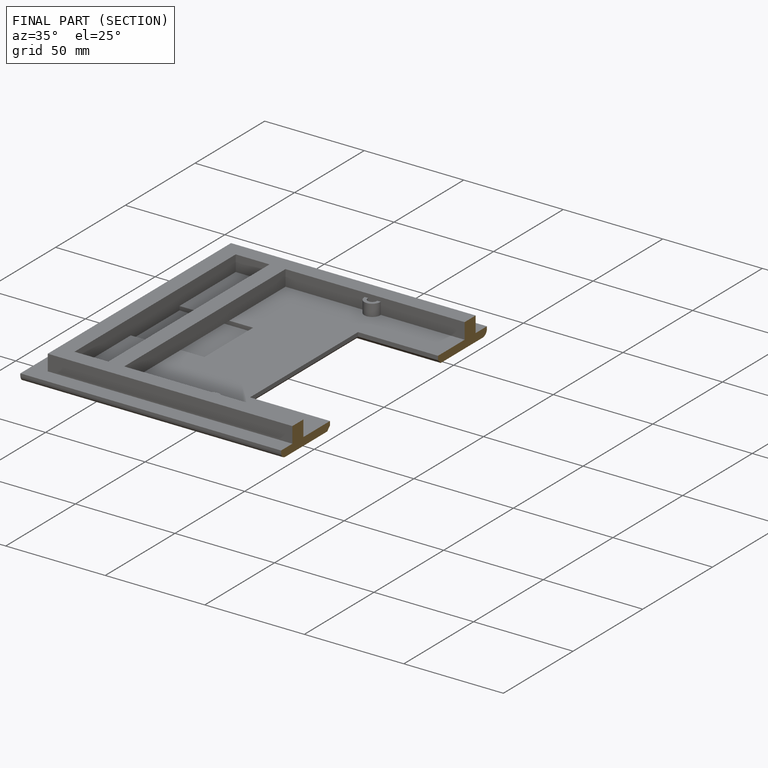
[diagram: finished part — half-section view (interior)]
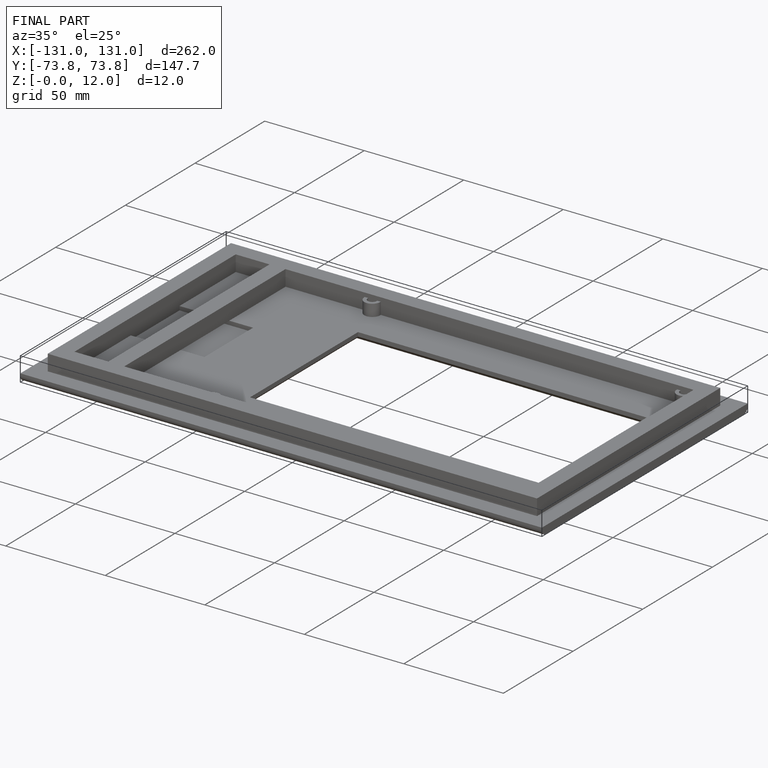
[diagram: finished part — iso view with bounding-box wireframe]
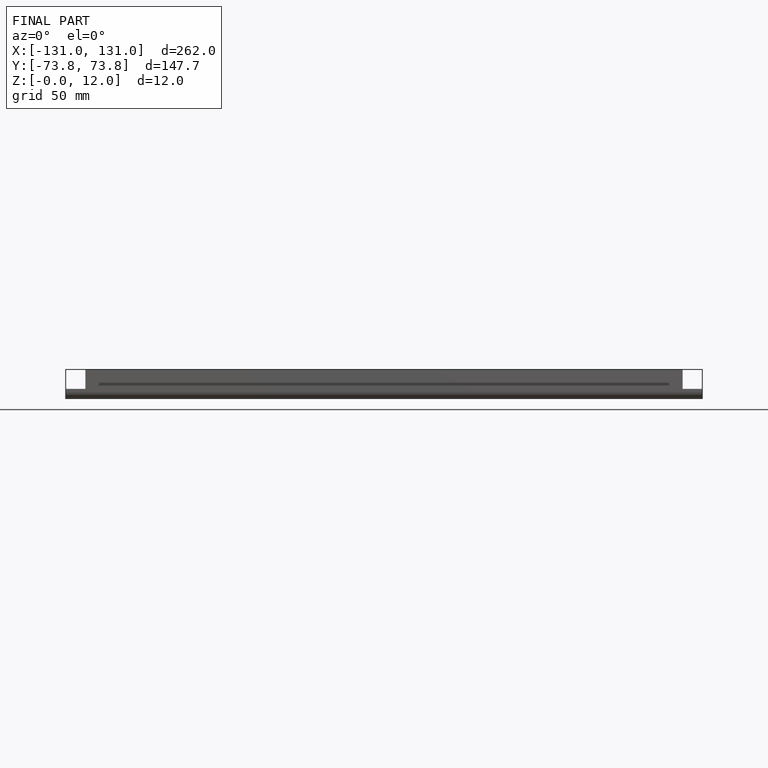
[diagram: finished part — front view with bounding-box wireframe]
